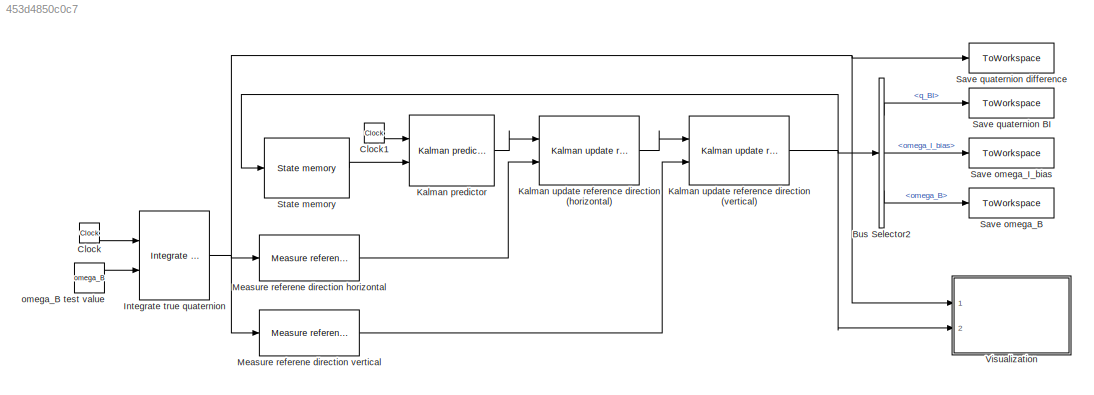
MODEL slx_453d4850c0c7
KIND model
BLOCK [BusSelector] Bus Selector2
  OutputSignals = q_BI,omega_I_bias,omega_B
  Ports = [1, 3]
BLOCK [Clock] Clock
BLOCK [Clock] Clock1
BLOCK [Reference] Integrate true quaternion  REF=lib_gyro_fusion/Integrate true quaternion  (lib defined in slx_a4b6311b9d1d)
  Ports = [2, 1]
  SourceBlock = lib_gyro_fusion/Integrate true quaternion
  q_BI_init = q_init
BLOCK [Reference] Kalman predictor  REF=lib_gyro_fusion/Kalman predictor  (lib defined in slx_a4b6311b9d1d)
  Ports = [2, 1]
  SourceBlock = lib_gyro_fusion/Kalman predictor
  omega_B_noise = omega_B_noise
  omega_I_bias_noise = omega_bias_I_noise
  q_noise = q_noise
BLOCK [Reference] Kalman update reference direction (horizontal)  REF=lib_gyro_fusion/Kalman update reference direction  (lib defined in slx_a4b6311b9d1d)
  Ports = [2, 1]
  SourceBlock = lib_gyro_fusion/Kalman update reference direction
  SourceType = SubSystem
BLOCK [Reference] Kalman update reference direction (vertical)  REF=lib_gyro_fusion/Kalman update reference direction  (lib defined in slx_a4b6311b9d1d)
  Ports = [2, 1]
  SourceBlock = lib_gyro_fusion/Kalman update reference direction
  SourceType = SubSystem
BLOCK [Reference] Measure referene direction horizontal  REF=lib_gyro_fusion/Measure referene direction  (lib defined in slx_a4b6311b9d1d)
  Ports = [1, 1]
  R_direction = horizontal_direction_R
  SourceBlock = lib_gyro_fusion/Measure referene direction
  measurement_noise_power = horizontal_direction_noise_power
  measurement_sample_rate = t_step
  ref_direction = horizontal_direction
  source_seeds = horizontal_direction_seeds
BLOCK [Reference] Measure referene direction vertical  REF=lib_gyro_fusion/Measure referene direction  (lib defined in slx_a4b6311b9d1d)
  Ports = [1, 1]
  R_direction = vertical_direction_R
  SourceBlock = lib_gyro_fusion/Measure referene direction
  measurement_noise_power = vertical_direction_noise_power
  measurement_sample_rate = t_step
  ref_direction = vertical_direction
  source_seeds = vertical_direction_seeds
BLOCK [ToWorkspace] Save omega_B
  FixptAsFi = on
  MaxDataPoints = inf
  Ports = [1]
  SampleTime = -1
  Save2DSignal = 3-D array (concatenate along third dimension)
  SaveFormat = Timeseries
  VariableName = omega_B_out
BLOCK [ToWorkspace] Save omega_I_bias
  FixptAsFi = on
  MaxDataPoints = inf
  Ports = [1]
  SampleTime = -1
  Save2DSignal = 3-D array (concatenate along third dimension)
  SaveFormat = Timeseries
  VariableName = omega_I_bias_out
BLOCK [ToWorkspace] Save quaternion BI
  FixptAsFi = on
  MaxDataPoints = inf
  Ports = [1]
  SampleTime = -1
  Save2DSignal = 3-D array (concatenate along third dimension)
  SaveFormat = Timeseries
  VariableName = q_BI_out
BLOCK [ToWorkspace] Save quaternion difference
  FixptAsFi = on
  MaxDataPoints = inf
  Ports = [1]
  SampleTime = -1
  Save2DSignal = 3-D array (concatenate along third dimension)
  SaveFormat = Timeseries
  VariableName = q_true_out
BLOCK [Reference] State memory  REF=lib_gyro_fusion/State memory  (lib defined in slx_a4b6311b9d1d)
  P_full_init = eye(9)
  Ports = [1, 1]
  SourceBlock = lib_gyro_fusion/State memory
  omega_B_init = [0; 0; 0]
  omega_I_bias_init = [0; 0; 0]
  q_BI_init = [1; 0; 0; 0]
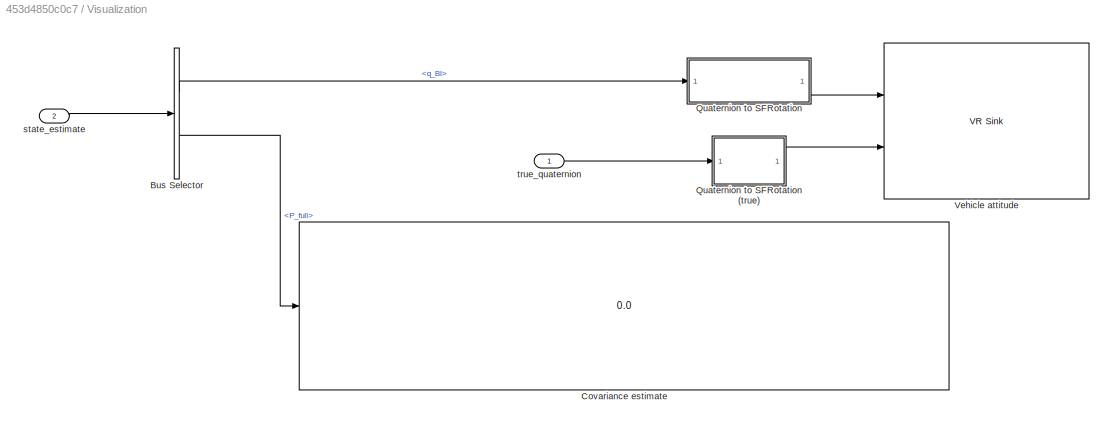
BLOCK [SubSystem] Visualization
  Ports = [2]
  RequestExecContextInheritance = off
BLOCK [BusSelector] Visualization/Bus Selector
  OutputSignals = q_BI,P_full
  Ports = [1, 2]
BLOCK [Display] Visualization/Covariance estimate
  Decimation = 1
  Ports = [1]
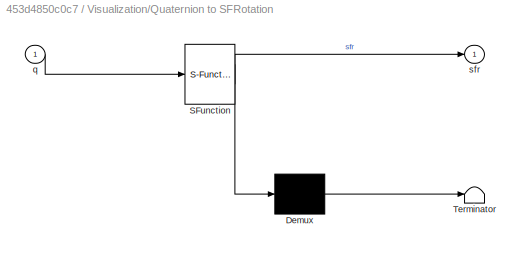
BLOCK [SubSystem] Visualization/Quaternion to SFRotation
  ErrorFcn = Stateflow.Translate.translate
  PermitHierarchicalResolution = ExplicitOnly
  Ports = [1, 1]
  RequestExecContextInheritance = off
  SFBlockType = MATLAB Function
  TreatAsAtomicUnit = on
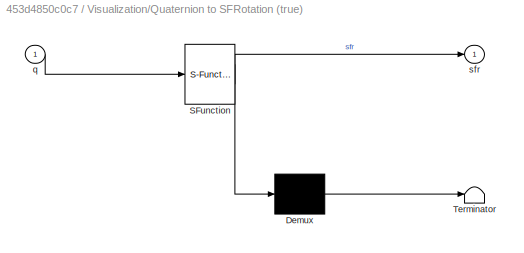
BLOCK [SubSystem] Visualization/Quaternion to SFRotation (true)
  ErrorFcn = Stateflow.Translate.translate
  PermitHierarchicalResolution = ExplicitOnly
  Ports = [1, 1]
  RequestExecContextInheritance = off
  SFBlockType = MATLAB Function
  TreatAsAtomicUnit = on
BLOCK [Demux] Visualization/Quaternion to SFRotation (true)/ Demux 
  Outputs = 1
  Ports = [1, 1]
BLOCK [S-Function] Visualization/Quaternion to SFRotation (true)/ SFunction 
  EnableBusSupport = on
  FunctionName = sf_sfun
  PortCounts = [1 2]
  Ports = [1, 2]
  Tag = Stateflow S-Function kalman_direction_updater 12
BLOCK [Terminator] Visualization/Quaternion to SFRotation (true)/ Terminator 
BLOCK [Inport] Visualization/Quaternion to SFRotation (true)/q
  IconDisplay = Port number
BLOCK [Outport] Visualization/Quaternion to SFRotation (true)/sfr
  IconDisplay = Port number
BLOCK [Demux] Visualization/Quaternion to SFRotation/ Demux 
  Outputs = 1
  Ports = [1, 1]
BLOCK [S-Function] Visualization/Quaternion to SFRotation/ SFunction 
  EnableBusSupport = on
  FunctionName = sf_sfun
  PortCounts = [1 2]
  Ports = [1, 2]
  Tag = Stateflow S-Function kalman_direction_updater 6
BLOCK [Terminator] Visualization/Quaternion to SFRotation/ Terminator 
BLOCK [Inport] Visualization/Quaternion to SFRotation/q
  IconDisplay = Port number
BLOCK [Outport] Visualization/Quaternion to SFRotation/sfr
  IconDisplay = Port number
BLOCK [Reference] Visualization/Vehicle attitude  REF=vrlib/VR Sink
  AllowVariableSize = off
  AutoView = off
  FieldsWritten = Estimated_car.rotation.4.1.1.double#True_car.rotation.4.1.1.double
  InstantiateOnLoad = on
  Ports = [2]
  RemoteChange = off
  RemoteView = off
  SampleTime = 0.1
  SourceBlock = vrlib/VR Sink
  SourceType = Virtual Reality Sink
  VideoDimensions = []
  ViewEnable = on
  WorldFileName = ins.wrl
BLOCK [Inport] Visualization/state_estimate
  IconDisplay = Port number
  Port = 2
BLOCK [Inport] Visualization/true_quaternion
  IconDisplay = Port number
BLOCK [Constant] omega_B test value
  Value = omega_B
LINE Bus Selector2:1 -> Save quaternion BI:1
LINE Bus Selector2:2 -> Save omega_I_bias:1
LINE Bus Selector2:3 -> Save omega_B:1
LINE Clock1:1 -> Kalman predictor:1
LINE Clock:1 -> Integrate true quaternion:1
NET Integrate true quaternion:1 -> Measure referene direction horizontal:1, Measure referene direction vertical:1, Save quaternion difference:1, Visualization:1
LINE Kalman predictor:1 -> Kalman update reference direction (horizontal):1
LINE Kalman update reference direction (horizontal):1 -> Kalman update reference direction (vertical):1
NET Kalman update reference direction (vertical):1 -> Bus Selector2:1, State memory:1, Visualization:2
LINE Measure referene direction horizontal:1 -> Kalman update reference direction (horizontal):2
LINE Measure referene direction vertical:1 -> Kalman update reference direction (vertical):2
LINE State memory:1 -> Kalman predictor:2
LINE Visualization/Bus Selector:1 -> Visualization/Quaternion to SFRotation:1
LINE Visualization/Bus Selector:2 -> Visualization/Covariance estimate:1
LINE Visualization/Quaternion to SFRotation (true):1 -> Visualization/Vehicle attitude:2
LINE Visualization/Quaternion to SFRotation:1 -> Visualization/Vehicle attitude:1
LINE Visualization/state_estimate:1 -> Visualization/Bus Selector:1
LINE Visualization/true_quaternion:1 -> Visualization/Quaternion to SFRotation (true):1
LINE omega_B test value:1 -> Integrate true quaternion:2
note: NET lines group one-source signal fan-out (src -> all destinations, sorted); 1:1 wires keep LINE
